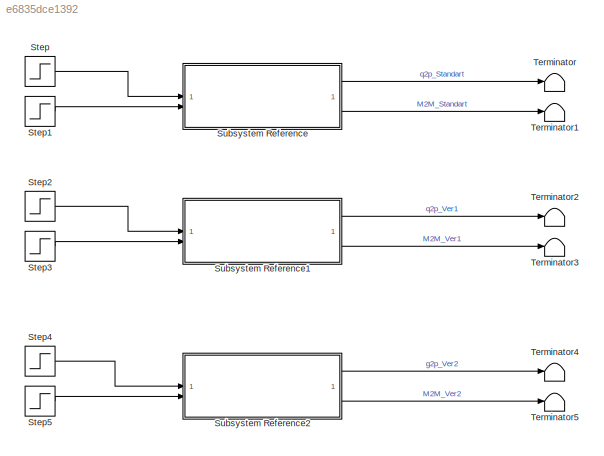
MODEL slx_e6835dce1392
KIND model
CONFIG AbsTol = auto
CONFIG EnableMultiTasking = off
CONFIG FixedStep = auto
CONFIG MaxStep = auto
CONFIG MinStep = auto
CONFIG RelTol = 1e-3
CONFIG SampleTimeConstraint = Unconstrained
CONFIG SolverName = VariableStepAuto
CONFIG StartTime = 0.0
CONFIG StopTime = 1
BLOCK [Step] Step
  SampleTime = 0
  Time = 0
BLOCK [Step] Step1
  SampleTime = 0
  Time = 0
BLOCK [Step] Step2
  SampleTime = 0
  Time = 0
BLOCK [Step] Step3
  SampleTime = 0
  Time = 0
BLOCK [Step] Step4
  SampleTime = 0
  Time = 0
BLOCK [Step] Step5
  SampleTime = 0
  Time = 0
BLOCK [SubSystem] Subsystem Reference
  ReferencedSubsystem = Gearbox_Standart
BLOCK [SubSystem] Subsystem Reference1
  ReferencedSubsystem = Gearbox_Ver1
BLOCK [SubSystem] Subsystem Reference2
  ReferencedSubsystem = Gearbox_Ver2
BLOCK [Terminator] Terminator
BLOCK [Terminator] Terminator1
BLOCK [Terminator] Terminator2
BLOCK [Terminator] Terminator3
BLOCK [Terminator] Terminator4
BLOCK [Terminator] Terminator5
LINE Step1:1 -> Subsystem Reference:2
LINE Step2:1 -> Subsystem Reference1:1
LINE Step3:1 -> Subsystem Reference1:2
LINE Step4:1 -> Subsystem Reference2:1
LINE Step5:1 -> Subsystem Reference2:2
LINE Step:1 -> Subsystem Reference:1
LINE Subsystem Reference1:1 -> Terminator2:1
LINE Subsystem Reference1:2 -> Terminator3:1
LINE Subsystem Reference2:1 -> Terminator4:1
LINE Subsystem Reference2:2 -> Terminator5:1
LINE Subsystem Reference:1 -> Terminator:1
LINE Subsystem Reference:2 -> Terminator1:1
